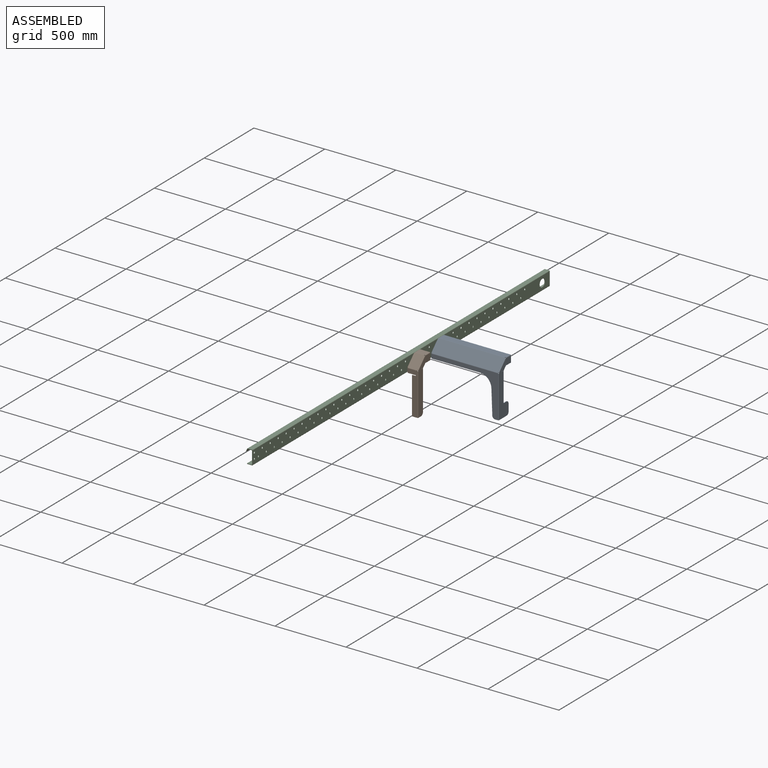
[diagram: assembled view]
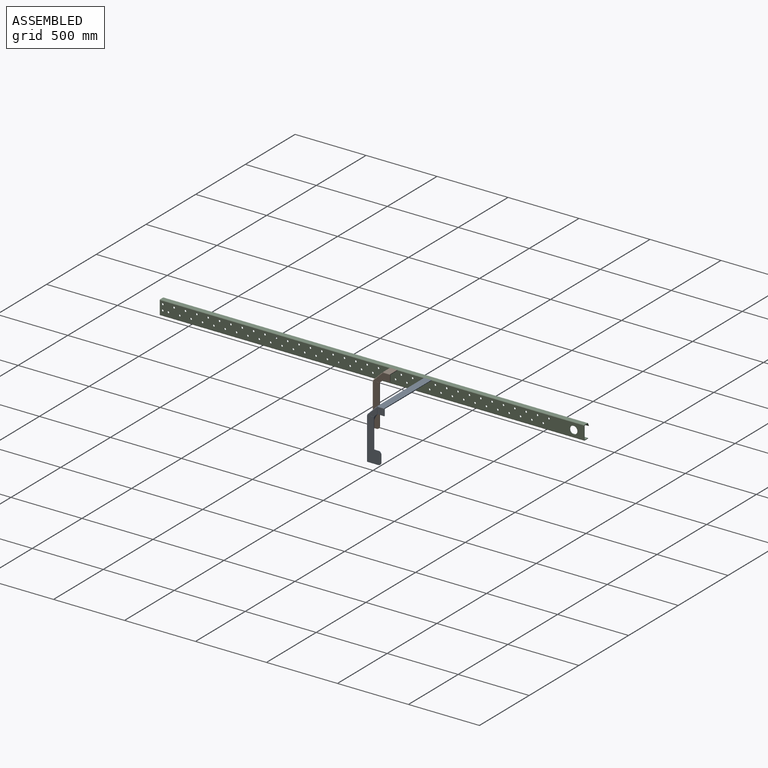
[diagram: assembled view, second angle]
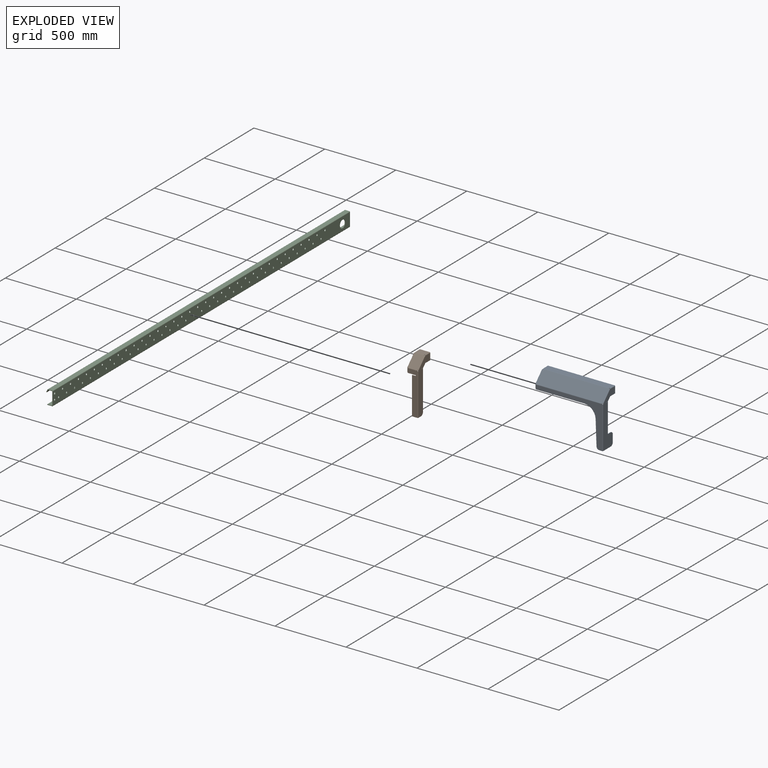
[diagram: exploded view]
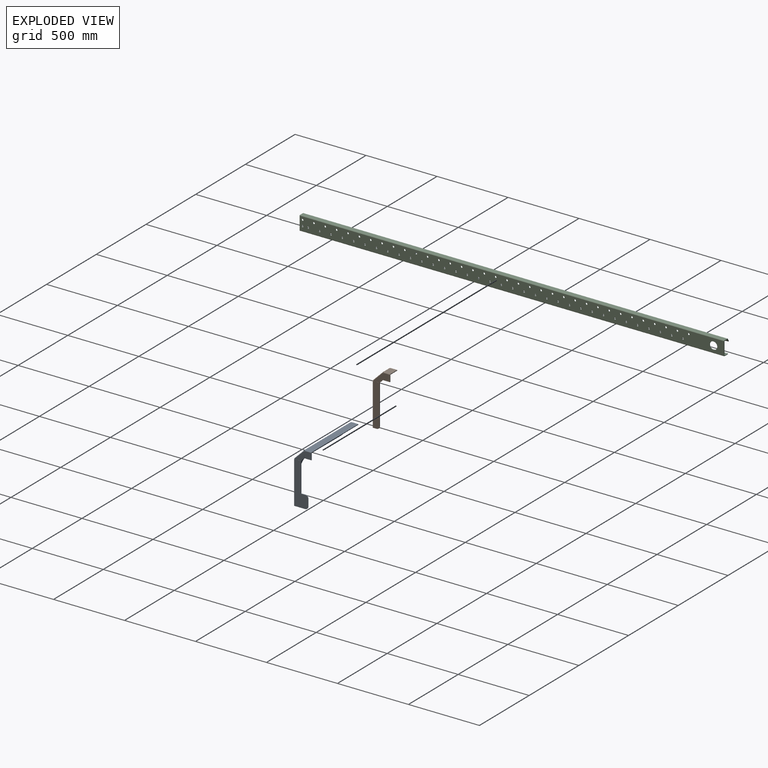
[diagram: exploded view, second angle]
ASSEMBLY  parts=3 mates=2
PART A: 93 faces, bbox 480x373.9x125.5 mm
  f0: plane 27.7x4mm, normal (1,0,0), area 110.8mm2, adj f1,f3,f4,f8
  f1: plane 468.99x50mm, normal (0,-1,0), area 23441.6mm2, adj f0,f2,f3,f5,f6,f7,f8,f81
  f2: plane 468.99x4mm, normal (0,0,1), area 1876mm2, adj f1,f3,f4,f89
  f3: offset ~22.3x6mm, area 81.2mm2, adj f0,f1,f2,f4
  f4: plane 468.99x50mm, normal (0,1,0), area 23441.6mm2, adj f0,f2,f3,f5,f6,f7,f8,f80
  f5: plane 4x2mm, normal (-1,0,0), area 8mm2, adj f1,f4,f6,f78
  f6: plane 4x1.99mm, normal (0,0,-1), area 8mm2, adj f1,f4,f5,f90
  f7: plane 4x2mm, normal (1,0,0), area 8mm2, adj f1,f4,f8,f79
  f8: plane 4x1mm, normal (0,0,-1), area 4mm2, adj f0,f1,f4,f7
  f9: plane 469.98x69.53mm, normal (0,-0.71,0.71), area 46199.5mm2, adj f11,f12,f13,f14,f15,f16,f17,f18
  f10: plane 469.98x69.53mm, normal (0,0.71,-0.71), area 46199.5mm2, adj f11,f12,f13,f14,f15,f16,f17,f18
  f11: plane 2.83x2.83mm, normal (0,0.71,0.71), area 8mm2, adj f9,f10,f12,f74
  f12: plane 4.24x4.24mm, normal (1,0,0), area 8mm2, adj f9,f10,f11,f79
  f13: plane 4.24x4.24mm, normal (1,0,0), area 8mm2, adj f9,f10,f14,f48
  f14: plane 2.83x2.83mm, normal (0,-0.71,-0.71), area 8mm2, adj f9,f10,f13,f75
  f15: plane 4.24x4.24mm, normal (-1,0,0), area 8mm2, adj f9,f10,f16,f49
  f16: plane 2.83x2.83mm, normal (0,-0.71,-0.71), area 8mm2, adj f9,f10,f15,f59
  f17: plane 4.24x4.24mm, normal (-1,0,0), area 8mm2, adj f9,f10,f18,f78
  f18: plane 2.83x2.83mm, normal (0,0.71,0.71), area 8mm2, adj f9,f10,f17,f60
  f19: plane 27.7x4mm, normal (1,0,0), area 110.8mm2, adj f20,f21,f26,f30
  f20: plane 469.99x298.34mm, normal (0,0,1), area 26971.9mm2, adj f19,f21,f22,f23,f24,f25,f27,f28
  f21: plane 4x1mm, normal (0,1,0), area 4mm2, adj f19,f20,f22,f26
  f22: bspline ~4x0.31mm, area 1.2mm2, adj f20,f21,f23,f26
  f23: plane 342.6x4mm, normal (0,-1,0), area 1370.4mm2, adj f20,f22,f26,f27
  f24: plane 173.4x6.42mm, normal (1,-0.04,0), area 694.1mm2, adj f20,f26,f27,f28
  f25: plane 20.72x4mm, normal (0,-1,0), area 82.9mm2, adj f20,f26,f28,f44
  f26: plane 469.99x298.34mm, normal (0,0,-1), area 26971.9mm2, adj f19,f21,f22,f23,f24,f25,f27,f28
  f27: cylinder r=80mm len=80.26mm, axis (0,0,-1), area 492.1mm2, adj f20,f23,f24,f26
  f28: cylinder r=20mm len=19.99mm, axis (0,0,-1), area 122.7mm2, adj f20,f24,f25,f26
  f29: plane 4x2mm, normal (1,0,0), area 8mm2, adj f20,f26,f30,f48
  f30: plane 4x1mm, normal (0,1,0), area 4mm2, adj f19,f20,f26,f29
  f31: plane 4x2mm, normal (-1,0,0), area 8mm2, adj f20,f26,f32,f49
  f32: plane 4x1.99mm, normal (0,1,0), area 8mm2, adj f20,f26,f31,f45
  f33: plane 44x4mm, normal (0,1,0), area 176mm2, adj f34,f35,f39,f43
  f34: plane 298.34x95.99mm, normal (1,0,0), area 18045mm2, adj f33,f35,f36,f37,f38,f40,f41,f42
  f35: plane 208.34x4mm, normal (0,0,1), area 833.4mm2, adj f33,f34,f38,f39
  f36: plane 75.99x4mm, normal (0,-1,0), area 304mm2, adj f34,f39,f40,f44
  f37: plane 50x4mm, normal (0,0,1), area 200mm2, adj f34,f39,f40,f41
  f38: plane 30x4mm, normal (0,1,0), area 120mm2, adj f34,f35,f39,f41
  f39: plane 298.34x95.99mm, normal (-1,0,0), area 18045mm2, adj f33,f35,f36,f37,f38,f40,f41,f42
  f40: cylinder r=20mm len=20mm, axis (-1,0,0), area 125.7mm2, adj f34,f36,f37,f39
  f41: cylinder r=20mm len=20mm, axis (1,0,0), area 125.7mm2, adj f34,f37,f38,f39
  f42: plane 4x1.99mm, normal (0,1,0), area 8mm2, adj f34,f39,f43,f45
  f43: plane 4x2mm, normal (0,0,-1), area 8mm2, adj f33,f34,f39,f42
  f44: plane 4.01x4.01mm, normal (0,-1,0), area 12.6mm2, adj f25,f36,f46,f47
  f45: plane 4.01x4.01mm, normal (0,1,0), area 12.6mm2, adj f32,f42,f46,f47
  f46: cylinder r=4.01mm len=296.34mm, axis (0,1,0), area 1866.6mm2, adj f26,f39,f44,f45
  f47: cylinder r=0.01mm len=296.34mm, axis (0,1,0), area 4.7mm2, adj f20,f34,f44,f45
  f48: plane 4x2.84mm, normal (1,0,0), area 6.3mm2, adj f13,f29,f50,f51
  f49: plane 4x2.84mm, normal (-1,0,0), area 6.3mm2, adj f15,f31,f50,f51
  f50: cylinder r=4.01mm len=466mm, axis (1,0,0), area 1467.6mm2, adj f10,f26,f48,f49
  f51: cylinder r=0.01mm len=466mm, axis (1,0,0), area 3.7mm2, adj f9,f20,f48,f49
  f52: plane 44x4mm, normal (0,-0.02,1), area 176mm2, adj f54,f55,f56,f57
  f53: plane 44x4mm, normal (0,-1,0.02), area 176mm2, adj f54,f55,f56,f58
  f54: plane 68.07x68.07mm, normal (1,0,0), area 2097.6mm2, adj f52,f53,f55,f57,f58,f62
  f55: plane 21.94x21.94mm, normal (0,-0.71,0.71), area 124.1mm2, adj f52,f53,f54,f56
  f56: plane 68.07x68.07mm, normal (-1,0,0), area 2097.6mm2, adj f52,f53,f55,f57,f58,f61
  f57: plane 4x1.36mm, normal (0,0.71,0.71), area 7.7mm2, adj f52,f54,f56,f60
  f58: plane 4x1.36mm, normal (0,-0.71,-0.71), area 7.7mm2, adj f53,f54,f56,f59
  f59: plane 4.01x2.84mm, normal (0,-0.71,-0.71), area 12.6mm2, adj f16,f58,f61,f62
  f60: plane 4.01x2.84mm, normal (0,0.71,0.71), area 12.6mm2, adj f18,f57,f61,f62
  f61: cylinder r=4.01mm len=69.55mm, axis (0,-0.71,-0.71), area 594.3mm2, adj f10,f56,f59,f60
  f62: cylinder r=0.01mm len=66.72mm, axis (0,-0.71,-0.71), area 1.5mm2, adj f9,f54,f59,f60
  f63: plane 26.87x4mm, normal (0,0,-1), area 107.5mm2, adj f65,f66,f69,f71
  f64: plane 26.87x4mm, normal (0,1,0), area 107.5mm2, adj f65,f66,f69,f73
  f65: plane 97.24x97.24mm, normal (-1,0,0), area 2249.4mm2, adj f63,f64,f66,f67,f68,f70,f71,f72
  f66: plane 97.24x97.24mm, normal (0,-0.71,0.71), area 550.1mm2, adj f63,f64,f65,f69
  f67: cylinder r=5.5mm len=11mm, axis (1,0,0), area 138.2mm2, adj f65,f69
  f68: cylinder r=5.5mm len=11mm, axis (1,0,0), area 138.2mm2, adj f65,f69
  f69: plane 97.24x97.24mm, normal (1,0,0), area 2249.4mm2, adj f63,f64,f66,f67,f68,f70,f71,f72
  f70: plane 4x1.41mm, normal (0,-0.71,-0.71), area 8mm2, adj f65,f69,f71,f75
  f71: plane 4x1.83mm, normal (0,0.71,-0.71), area 10.4mm2, adj f63,f65,f69,f70
  f72: plane 4x1.41mm, normal (0,0.71,0.71), area 8mm2, adj f65,f69,f73,f74
  f73: plane 4x1.83mm, normal (0,0.71,-0.71), area 10.4mm2, adj f64,f65,f69,f72
  f74: plane 4.01x2.84mm, normal (0,0.71,0.71), area 12.6mm2, adj f11,f72,f76,f77
  f75: plane 4.01x2.84mm, normal (0,-0.71,-0.71), area 12.6mm2, adj f14,f70,f76,f77
  f76: cylinder r=4.01mm len=69.55mm, axis (0,0.71,0.71), area 594.3mm2, adj f10,f69,f74,f75
  f77: cylinder r=0.01mm len=66.72mm, axis (0,0.71,0.71), area 1.5mm2, adj f9,f65,f74,f75
  f78: plane 4x2.84mm, normal (-1,0,0), area 6.3mm2, adj f5,f17,f80,f81
  f79: plane 4x2.84mm, normal (1,0,0), area 6.3mm2, adj f7,f12,f80,f81
  f80: cylinder r=4.01mm len=466mm, axis (-1,0,0), area 1467.6mm2, adj f4,f10,f78,f79
  f81: cylinder r=0.01mm len=466mm, axis (-1,0,0), area 3.7mm2, adj f1,f9,f78,f79
  f82: plane 44x4mm, normal (0,0,-1), area 176mm2, adj f83,f84,f86,f87
  f83: plane 50x45.99mm, normal (1,0,0), area 2295.3mm2, adj f82,f84,f85,f87,f88,f92
  f84: plane 50x4mm, normal (0,-1,0), area 200mm2, adj f82,f83,f85,f86
  f85: plane 45.99x4mm, normal (0,0,1), area 184mm2, adj f83,f84,f86,f89
  f86: plane 50x45.99mm, normal (-1,0,0), area 2295.3mm2, adj f82,f84,f85,f87,f88,f91
  f87: plane 4x2mm, normal (0,1,0), area 8mm2, adj f82,f83,f86,f88
  f88: plane 4x1.99mm, normal (0,0,-1), area 8mm2, adj f83,f86,f87,f90
  f89: plane 4.01x4.01mm, normal (0,0,1), area 12.6mm2, adj f2,f85,f91,f92
  f90: plane 4.01x4.01mm, normal (0,0,-1), area 12.6mm2, adj f6,f88,f91,f92
  f91: cylinder r=4.01mm len=48mm, axis (0,0,1), area 302.3mm2, adj f4,f86,f89,f90
  f92: cylinder r=0.01mm len=48mm, axis (0,0,1), area 0.8mm2, adj f1,f83,f89,f90
PART B: 88 faces, bbox 80x373.9x125.5 mm
  f0: plane 27.7x4mm, normal (1,0,0), area 110.8mm2, adj f1,f3,f4,f8
  f1: plane 68.99x50mm, normal (0,-1,0), area 3443.2mm2, adj f0,f2,f3,f5,f6,f7,f8,f76
  f2: plane 68.99x4mm, normal (0,0,1), area 276mm2, adj f1,f3,f4,f84
  f3: offset ~22.3x6mm, area 81.2mm2, adj f0,f1,f2,f4
  f4: plane 68.99x50mm, normal (0,1,0), area 3443.2mm2, adj f0,f2,f3,f5,f6,f7,f8,f75
  f5: plane 4x2mm, normal (-1,0,0), area 8mm2, adj f1,f4,f6,f73
  f6: plane 4x1.99mm, normal (0,0,-1), area 8mm2, adj f1,f4,f5,f85
  f7: plane 4x2mm, normal (1,0,0), area 8mm2, adj f1,f4,f8,f74
  f8: plane 4x1mm, normal (0,0,-1), area 4mm2, adj f0,f1,f4,f7
  f9: plane 69.98x69.53mm, normal (0,-0.71,0.71), area 6865.6mm2, adj f11,f12,f13,f14,f15,f16,f17,f18
  f10: plane 69.98x69.53mm, normal (0,0.71,-0.71), area 6865.6mm2, adj f11,f12,f13,f14,f15,f16,f17,f18
  f11: plane 2.83x2.83mm, normal (0,0.71,0.71), area 8mm2, adj f9,f10,f12,f69
  f12: plane 4.24x4.24mm, normal (1,0,0), area 8mm2, adj f9,f10,f11,f74
  f13: plane 4.24x4.24mm, normal (1,0,0), area 8mm2, adj f9,f10,f14,f43
  f14: plane 2.83x2.83mm, normal (0,-0.71,-0.71), area 8mm2, adj f9,f10,f13,f70
  f15: plane 4.24x4.24mm, normal (-1,0,0), area 8mm2, adj f9,f10,f16,f44
  f16: plane 2.83x2.83mm, normal (0,-0.71,-0.71), area 8mm2, adj f9,f10,f15,f54
  f17: plane 4.24x4.24mm, normal (-1,0,0), area 8mm2, adj f9,f10,f18,f73
  f18: plane 2.83x2.83mm, normal (0,0.71,0.71), area 8mm2, adj f9,f10,f17,f55
  f19: plane 27.7x4mm, normal (1,0,0), area 110.8mm2, adj f20,f25,f26,f28
  f20: plane 298.34x68.99mm, normal (0,0,1), area 12092.4mm2, adj f19,f21,f22,f23,f24,f25,f27,f28
  f21: plane 6x4mm, normal (1,0,0), area 24mm2, adj f20,f22,f25,f26
  f22: plane 26x4mm, normal (0,1,0), area 104mm2, adj f20,f21,f23,f26
  f23: plane 262.65x4mm, normal (1,0,0), area 1050.6mm2, adj f20,f22,f24,f26
  f24: plane 37.99x4mm, normal (0,-1,0), area 152mm2, adj f20,f23,f26,f39
  f25: plane 57x4mm, normal (0,-1,0), area 228mm2, adj f19,f20,f21,f26
  f26: plane 298.34x68.99mm, normal (0,0,-1), area 12092.4mm2, adj f19,f21,f22,f23,f24,f25,f27,f28
  f27: plane 4x2mm, normal (1,0,0), area 8mm2, adj f20,f26,f28,f43
  f28: plane 4x1mm, normal (0,1,0), area 4mm2, adj f19,f20,f26,f27
  f29: plane 4x2mm, normal (-1,0,0), area 8mm2, adj f20,f26,f30,f44
  f30: plane 4x1.99mm, normal (0,1,0), area 8mm2, adj f20,f26,f29,f40
  f31: plane 44x4mm, normal (0,1,0), area 176mm2, adj f32,f34,f35,f38
  f32: plane 298.34x45.99mm, normal (1,0,0), area 13630.8mm2, adj f31,f33,f34,f36,f37,f38,f42
  f33: plane 25.99x4mm, normal (0,-1,0), area 104mm2, adj f32,f35,f36,f39
  f34: plane 278.34x4mm, normal (0,0,1), area 1113.4mm2, adj f31,f32,f35,f36
  f35: plane 298.34x45.99mm, normal (-1,0,0), area 13630.8mm2, adj f31,f33,f34,f36,f37,f38,f41
  f36: cylinder r=20mm len=20mm, axis (1,0,0), area 125.7mm2, adj f32,f33,f34,f35
  f37: plane 4x1.99mm, normal (0,1,0), area 8mm2, adj f32,f35,f38,f40
  f38: plane 4x2mm, normal (0,0,-1), area 8mm2, adj f31,f32,f35,f37
  f39: plane 4.01x4.01mm, normal (0,-1,0), area 12.6mm2, adj f24,f33,f41,f42
  f40: plane 4.01x4.01mm, normal (0,1,0), area 12.6mm2, adj f30,f37,f41,f42
  f41: cylinder r=4.01mm len=296.34mm, axis (0,1,0), area 1866.6mm2, adj f26,f35,f39,f40
  f42: cylinder r=0.01mm len=296.34mm, axis (0,1,0), area 4.7mm2, adj f20,f32,f39,f40
  f43: plane 4x2.84mm, normal (1,0,0), area 6.3mm2, adj f13,f27,f45,f46
  f44: plane 4x2.84mm, normal (-1,0,0), area 6.3mm2, adj f15,f29,f45,f46
  f45: cylinder r=4.01mm len=66mm, axis (1,0,0), area 207.8mm2, adj f10,f26,f43,f44
  f46: cylinder r=0.01mm len=66mm, axis (1,0,0), area 0.5mm2, adj f9,f20,f43,f44
  f47: plane 44x4mm, normal (0,-0.02,1), area 176mm2, adj f49,f50,f51,f52
  f48: plane 44x4mm, normal (0,-1,0.02), area 176mm2, adj f49,f50,f51,f53
  f49: plane 68.07x68.07mm, normal (1,0,0), area 2097.6mm2, adj f47,f48,f50,f52,f53,f57
  f50: plane 21.94x21.94mm, normal (0,-0.71,0.71), area 124.1mm2, adj f47,f48,f49,f51
  f51: plane 68.07x68.07mm, normal (-1,0,0), area 2097.6mm2, adj f47,f48,f50,f52,f53,f56
  f52: plane 4x1.36mm, normal (0,0.71,0.71), area 7.7mm2, adj f47,f49,f51,f55
  f53: plane 4x1.36mm, normal (0,-0.71,-0.71), area 7.7mm2, adj f48,f49,f51,f54
  f54: plane 4.01x2.84mm, normal (0,-0.71,-0.71), area 12.6mm2, adj f16,f53,f56,f57
  f55: plane 4.01x2.84mm, normal (0,0.71,0.71), area 12.6mm2, adj f18,f52,f56,f57
  f56: cylinder r=4.01mm len=69.55mm, axis (0,-0.71,-0.71), area 594.3mm2, adj f10,f51,f54,f55
  f57: cylinder r=0.01mm len=66.72mm, axis (0,-0.71,-0.71), area 1.5mm2, adj f9,f49,f54,f55
  f58: plane 26.87x4mm, normal (0,0,-1), area 107.5mm2, adj f60,f61,f64,f66
  f59: plane 26.87x4mm, normal (0,1,0), area 107.5mm2, adj f60,f61,f64,f68
  f60: plane 97.24x97.24mm, normal (-1,0,0), area 2249.4mm2, adj f58,f59,f61,f62,f63,f65,f66,f67
  f61: plane 97.24x97.24mm, normal (0,-0.71,0.71), area 550.1mm2, adj f58,f59,f60,f64
  f62: cylinder r=5.5mm len=11mm, axis (1,0,0), area 138.2mm2, adj f60,f64
  f63: cylinder r=5.5mm len=11mm, axis (1,0,0), area 138.2mm2, adj f60,f64
  f64: plane 97.24x97.24mm, normal (1,0,0), area 2249.4mm2, adj f58,f59,f61,f62,f63,f65,f66,f67
  f65: plane 4x1.41mm, normal (0,-0.71,-0.71), area 8mm2, adj f60,f64,f66,f70
  f66: plane 4x1.83mm, normal (0,0.71,-0.71), area 10.4mm2, adj f58,f60,f64,f65
  f67: plane 4x1.41mm, normal (0,0.71,0.71), area 8mm2, adj f60,f64,f68,f69
  f68: plane 4x1.83mm, normal (0,0.71,-0.71), area 10.4mm2, adj f59,f60,f64,f67
  f69: plane 4.01x2.84mm, normal (0,0.71,0.71), area 12.6mm2, adj f11,f67,f71,f72
  f70: plane 4.01x2.84mm, normal (0,-0.71,-0.71), area 12.6mm2, adj f14,f65,f71,f72
  f71: cylinder r=4.01mm len=69.55mm, axis (0,0.71,0.71), area 594.3mm2, adj f10,f64,f69,f70
  f72: cylinder r=0.01mm len=66.72mm, axis (0,0.71,0.71), area 1.5mm2, adj f9,f60,f69,f70
  f73: plane 4x2.84mm, normal (-1,0,0), area 6.3mm2, adj f5,f17,f75,f76
  f74: plane 4x2.84mm, normal (1,0,0), area 6.3mm2, adj f7,f12,f75,f76
  f75: cylinder r=4.01mm len=66mm, axis (-1,0,0), area 207.8mm2, adj f4,f10,f73,f74
  f76: cylinder r=0.01mm len=66mm, axis (-1,0,0), area 0.5mm2, adj f1,f9,f73,f74
  f77: plane 44x4mm, normal (0,0,-1), area 176mm2, adj f78,f79,f81,f82
  f78: plane 50x45.99mm, normal (1,0,0), area 2295.3mm2, adj f77,f79,f80,f82,f83,f87
  f79: plane 50x4mm, normal (0,-1,0), area 200mm2, adj f77,f78,f80,f81
  f80: plane 45.99x4mm, normal (0,0,1), area 184mm2, adj f78,f79,f81,f84
  f81: plane 50x45.99mm, normal (-1,0,0), area 2295.3mm2, adj f77,f79,f80,f82,f83,f86
  f82: plane 4x2mm, normal (0,1,0), area 8mm2, adj f77,f78,f81,f83
  f83: plane 4x1.99mm, normal (0,0,-1), area 8mm2, adj f78,f81,f82,f85
  f84: plane 4.01x4.01mm, normal (0,0,1), area 12.6mm2, adj f2,f80,f86,f87
  f85: plane 4.01x4.01mm, normal (0,0,-1), area 12.6mm2, adj f6,f83,f86,f87
  f86: cylinder r=4.01mm len=48mm, axis (0,0,1), area 302.3mm2, adj f4,f81,f84,f85
  f87: cylinder r=0.01mm len=48mm, axis (0,0,1), area 0.8mm2, adj f1,f78,f84,f85
PART C: 101 faces, bbox 46.9x2990x100 mm
  f0: plane 91.98x4mm, normal (0,1,0), area 367.9mm2, adj f73,f74,f81,f98
  f1: plane 91.98x4mm, normal (0,-1,0), area 367.9mm2, adj f73,f74,f80,f97
  f2: cylinder r=6.5mm len=13mm, axis (1,0,0), area 163.4mm2, adj f73,f74
  f3: cylinder r=6.5mm len=13mm, axis (1,0,0), area 163.4mm2, adj f73,f74
  f4: cylinder r=6.5mm len=13mm, axis (1,0,0), area 163.4mm2, adj f73,f74
  f5: cylinder r=6.5mm len=13mm, axis (1,0,0), area 163.4mm2, adj f73,f74
  f6: cylinder r=6.5mm len=13mm, axis (1,0,0), area 163.4mm2, adj f73,f74
  f7: cylinder r=6.5mm len=13mm, axis (1,0,0), area 163.4mm2, adj f73,f74
  f8: cylinder r=6.5mm len=13mm, axis (1,0,0), area 163.4mm2, adj f73,f74
  f9: cylinder r=6.5mm len=13mm, axis (1,0,0), area 163.4mm2, adj f73,f74
  f10: cylinder r=6.5mm len=13mm, axis (1,0,0), area 163.4mm2, adj f73,f74
  f11: cylinder r=6.5mm len=13mm, axis (1,0,0), area 163.4mm2, adj f73,f74
  f12: cylinder r=6.5mm len=13mm, axis (1,0,0), area 163.4mm2, adj f73,f74
  f13: cylinder r=6.5mm len=13mm, axis (1,0,0), area 163.4mm2, adj f73,f74
  f14: cylinder r=6.5mm len=13mm, axis (1,0,0), area 163.4mm2, adj f73,f74
  f15: cylinder r=6.5mm len=13mm, axis (1,0,0), area 163.4mm2, adj f73,f74
  f16: cylinder r=6.5mm len=13mm, axis (1,0,0), area 163.4mm2, adj f73,f74
  f17: cylinder r=6.5mm len=13mm, axis (1,0,0), area 163.4mm2, adj f73,f74
  f18: cylinder r=6.5mm len=13mm, axis (1,0,0), area 163.4mm2, adj f73,f74
  f19: cylinder r=6.5mm len=13mm, axis (1,0,0), area 163.4mm2, adj f73,f74
  f20: cylinder r=6.5mm len=13mm, axis (1,0,0), area 163.4mm2, adj f73,f74
  f21: cylinder r=6.5mm len=13mm, axis (1,0,0), area 163.4mm2, adj f73,f74
  f22: cylinder r=6.5mm len=13mm, axis (1,0,0), area 163.4mm2, adj f73,f74
  f23: cylinder r=6.5mm len=13mm, axis (1,0,0), area 163.4mm2, adj f73,f74
  f24: cylinder r=6.5mm len=13mm, axis (1,0,0), area 163.4mm2, adj f73,f74
  f25: cylinder r=6.5mm len=13mm, axis (1,0,0), area 163.4mm2, adj f73,f74
  f26: cylinder r=6.5mm len=13mm, axis (1,0,0), area 163.4mm2, adj f73,f74
  f27: cylinder r=6.5mm len=13mm, axis (1,0,0), area 163.4mm2, adj f73,f74
  f28: cylinder r=6.5mm len=13mm, axis (1,0,0), area 163.4mm2, adj f73,f74
  f29: cylinder r=6.5mm len=13mm, axis (1,0,0), area 163.4mm2, adj f73,f74
  f30: cylinder r=6.5mm len=13mm, axis (1,0,0), area 163.4mm2, adj f73,f74
  f31: cylinder r=6.5mm len=13mm, axis (1,0,0), area 163.4mm2, adj f73,f74
  f32: cylinder r=6.5mm len=13mm, axis (1,0,0), area 163.4mm2, adj f73,f74
  f33: cylinder r=6.5mm len=13mm, axis (1,0,0), area 163.4mm2, adj f73,f74
  f34: cylinder r=6.5mm len=13mm, axis (1,0,0), area 163.4mm2, adj f73,f74
  f35: cylinder r=6.5mm len=13mm, axis (1,0,0), area 163.4mm2, adj f73,f74
  f36: cylinder r=6.5mm len=13mm, axis (1,0,0), area 163.4mm2, adj f73,f74
  f37: cylinder r=6.5mm len=13mm, axis (1,0,0), area 163.4mm2, adj f73,f74
  f38: cylinder r=6.5mm len=13mm, axis (1,0,0), area 163.4mm2, adj f73,f74
  f39: cylinder r=6.5mm len=13mm, axis (1,0,0), area 163.4mm2, adj f73,f74
  f40: cylinder r=6.5mm len=13mm, axis (1,0,0), area 163.4mm2, adj f73,f74
  f41: cylinder r=6.5mm len=13mm, axis (1,0,0), area 163.4mm2, adj f73,f74
  f42: cylinder r=6.5mm len=13mm, axis (1,0,0), area 163.4mm2, adj f73,f74
  f43: cylinder r=6.5mm len=13mm, axis (1,0,0), area 163.4mm2, adj f73,f74
  f44: cylinder r=6.5mm len=13mm, axis (1,0,0), area 163.4mm2, adj f73,f74
  f45: cylinder r=6.5mm len=13mm, axis (1,0,0), area 163.4mm2, adj f73,f74
  f46: cylinder r=6.5mm len=13mm, axis (1,0,0), area 163.4mm2, adj f73,f74
  f47: cylinder r=6.5mm len=13mm, axis (1,0,0), area 163.4mm2, adj f73,f74
  f48: cylinder r=6.5mm len=13mm, axis (1,0,0), area 163.4mm2, adj f73,f74
  f49: cylinder r=6.5mm len=13mm, axis (1,0,0), area 163.4mm2, adj f73,f74
  f50: cylinder r=6.5mm len=13mm, axis (1,0,0), area 163.4mm2, adj f73,f74
  f51: cylinder r=6.5mm len=13mm, axis (1,0,0), area 163.4mm2, adj f73,f74
  f52: cylinder r=6.5mm len=13mm, axis (1,0,0), area 163.4mm2, adj f73,f74
  f53: cylinder r=6.5mm len=13mm, axis (1,0,0), area 163.4mm2, adj f73,f74
  f54: cylinder r=6.5mm len=13mm, axis (1,0,0), area 163.4mm2, adj f73,f74
  f55: cylinder r=6.5mm len=13mm, axis (1,0,0), area 163.4mm2, adj f73,f74
  f56: cylinder r=6.5mm len=13mm, axis (1,0,0), area 163.4mm2, adj f73,f74
  f57: cylinder r=6.5mm len=13mm, axis (1,0,0), area 163.4mm2, adj f73,f74
  f58: cylinder r=6.5mm len=13mm, axis (1,0,0), area 163.4mm2, adj f73,f74
  f59: cylinder r=6.5mm len=13mm, axis (1,0,0), area 163.4mm2, adj f73,f74
  f60: cylinder r=6.5mm len=13mm, axis (1,0,0), area 163.4mm2, adj f73,f74
  f61: cylinder r=6.5mm len=13mm, axis (1,0,0), area 163.4mm2, adj f73,f74
  f62: cylinder r=6.5mm len=13mm, axis (1,0,0), area 163.4mm2, adj f73,f74
  f63: cylinder r=6.5mm len=13mm, axis (1,0,0), area 163.4mm2, adj f73,f74
  f64: cylinder r=6.5mm len=13mm, axis (1,0,0), area 163.4mm2, adj f73,f74
  f65: cylinder r=6.5mm len=13mm, axis (1,0,0), area 163.4mm2, adj f73,f74
  f66: cylinder r=27mm len=54mm, axis (1,0,0), area 678.6mm2, adj f73,f74
  f67: cylinder r=6.5mm len=13mm, axis (1,0,0), area 163.4mm2, adj f73,f74
  f68: cylinder r=6.5mm len=13mm, axis (1,0,0), area 163.4mm2, adj f73,f74
  f69: cylinder r=6.5mm len=13mm, axis (1,0,0), area 163.4mm2, adj f73,f74
  f70: cylinder r=6.5mm len=13mm, axis (1,0,0), area 163.4mm2, adj f73,f74
  f71: cylinder r=6.5mm len=13mm, axis (1,0,0), area 163.4mm2, adj f73,f74
  f72: cylinder r=6.5mm len=13mm, axis (1,0,0), area 163.4mm2, adj f73,f74
  f73: plane 2990x91.98mm, normal (1,0,0), area 263438.7mm2, adj f0,f1,f2,f3,f4,f5,f6,f7
  f74: plane 2990x91.98mm, normal (-1,0,0), area 263438.7mm2, adj f0,f1,f2,f3,f4,f5,f6,f7
  f75: plane 34.99x4mm, normal (0,1,0), area 140mm2, adj f77,f78,f79,f81
  f76: plane 34.99x4mm, normal (0,-1,0), area 140mm2, adj f77,f78,f79,f80
  f77: plane 2990x4mm, normal (-1,0,0), area 11960mm2, adj f75,f76,f78,f79
  f78: plane 2990x34.99mm, normal (0,0,-1), area 104620.1mm2, adj f75,f76,f77,f82
  f79: plane 2990x34.99mm, normal (0,0,1), area 104620.1mm2, adj f75,f76,f77,f83
  f80: plane 4.01x4.01mm, normal (0,-1,0), area 12.6mm2, adj f1,f76,f82,f83
  f81: plane 4.01x4.01mm, normal (0,1,0), area 12.6mm2, adj f0,f75,f82,f83
  f82: cylinder r=4.01mm len=2990mm, axis (0,-1,0), area 18833.7mm2, adj f73,f78,f80,f81
  f83: cylinder r=0.01mm len=2990mm, axis (0,-1,0), area 47mm2, adj f74,f79,f80,f81
  f84: plane 29.98x4mm, normal (0,1,0), area 119.9mm2, adj f86,f87,f94,f98
  f85: plane 29.98x4mm, normal (0,-1,0), area 119.9mm2, adj f86,f87,f93,f97
  f86: plane 2990x29.98mm, normal (0,0,1), area 89652.1mm2, adj f84,f85,f95,f99
  f87: plane 2990x29.98mm, normal (0,0,-1), area 89652.1mm2, adj f84,f85,f96,f100
  f88: plane 19.55x12.88mm, normal (0,1,0), area 80mm2, adj f89,f91,f92,f94
  f89: plane 2990x3.54mm, normal (-0.47,0,-0.88), area 11960mm2, adj f88,f90,f91,f92
  f90: plane 19.55x12.88mm, normal (0,-1,0), area 80mm2, adj f89,f91,f92,f93
  f91: plane 2990x17.68mm, normal (-0.88,0,0.47), area 59782mm2, adj f88,f89,f90,f95
  f92: plane 2990x17.68mm, normal (0.88,0,-0.47), area 59782mm2, adj f88,f89,f90,f96
  f93: plane 4.01x3.55mm, normal (0,-1,0), area 8.7mm2, adj f85,f90,f95,f96
  f94: plane 4.01x3.55mm, normal (0,1,0), area 8.7mm2, adj f84,f88,f95,f96
  f95: cylinder r=4.01mm len=2990mm, axis (0,-1,0), area 13005.8mm2, adj f86,f91,f93,f94
  f96: cylinder r=0.01mm len=2990mm, axis (0,-1,0), area 32.4mm2, adj f87,f92,f93,f94
  f97: plane 4.01x4.01mm, normal (0,-1,0), area 12.6mm2, adj f1,f85,f99,f100
  f98: plane 4.01x4.01mm, normal (0,1,0), area 12.6mm2, adj f0,f84,f99,f100
  f99: cylinder r=4.01mm len=2990mm, axis (0,-1,0), area 18833.7mm2, adj f73,f86,f97,f98
  f100: cylinder r=0.01mm len=2990mm, axis (0,-1,0), area 47mm2, adj f74,f87,f97,f98
PLACE A rot(axis=(0,-0.71,-0.71),180deg) t=(-470.14,-917.63,-335.56)mm
PLACE B rot(axis=(0,0.71,0.71),180deg) t=(-900.14,-1157.63,-335.57)mm
PLACE C t=(-978.14,655.75,-429.46)mm
MATE fastened A.f68 <-> C.f22  axis (-1,0,0) through (-974.14,-474.25,-358.45)mm
MATE fastened B.f63 <-> C.f32  axis (-1,0,0) through (-974.14,-714.25,-358.46)mm
